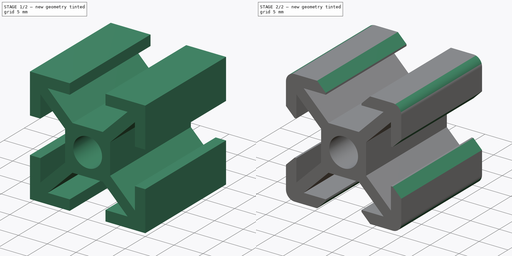
[diagram: build sequence overview — one tinted view per stage of 2, left to right]
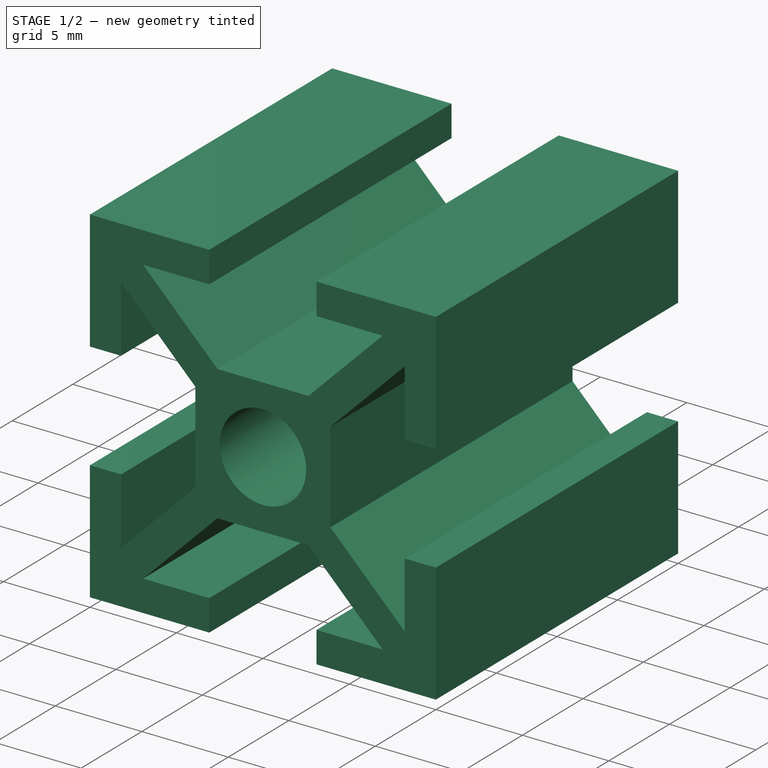
[diagram: stage 1 of 2 — iso view after this stage's code; geometry added in this stage tinted green]
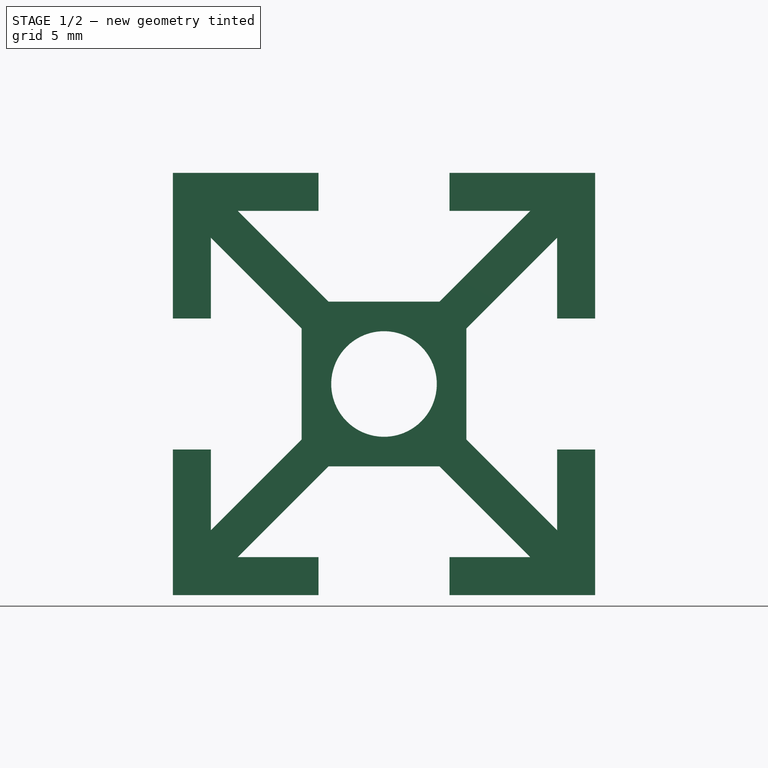
[diagram: stage 1 of 2 — front view after this stage's code; geometry added in this stage tinted green]
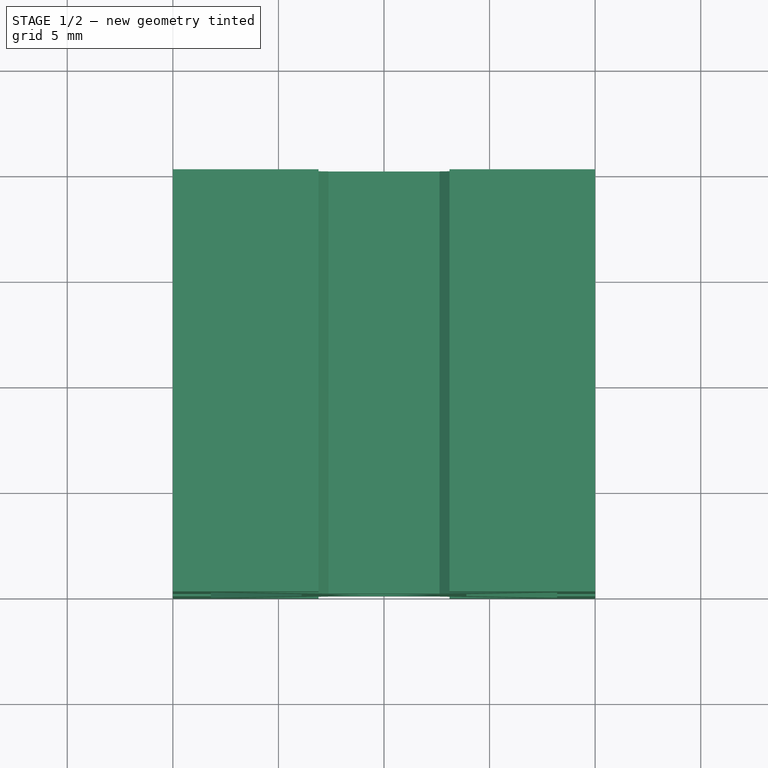
[diagram: stage 1 of 2 — top view after this stage's code; geometry added in this stage tinted green]
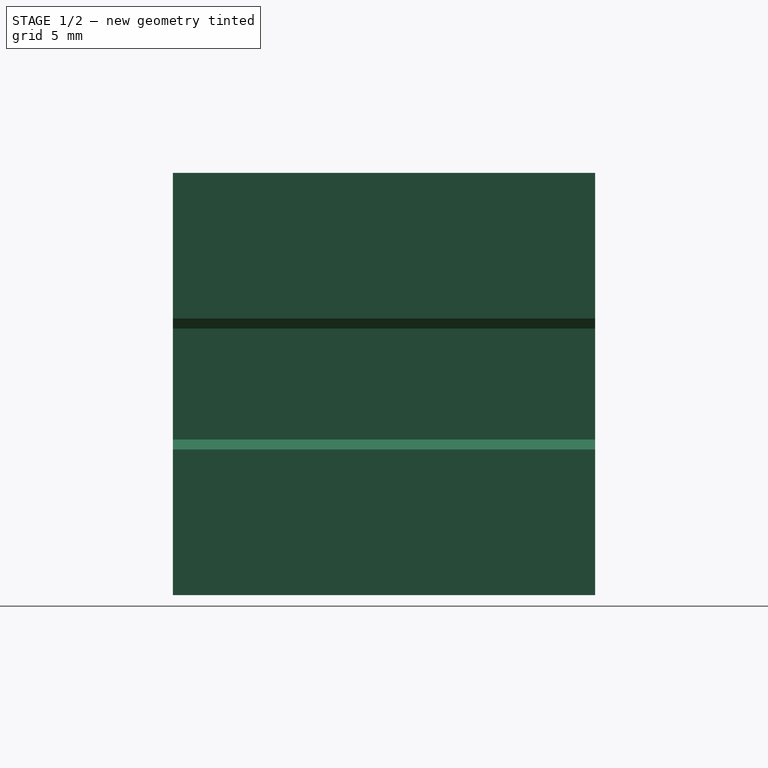
[diagram: stage 1 of 2 — right view after this stage's code; geometry added in this stage tinted green]
FCSTD DOCUMENT  (FreeCAD 1.0R39319 (Git))
Label: AlmProfile-2020
License: All rights reserved
LicenseURL: https://en.wikipedia.org/wiki/All_rights_reserved
objects: Sketcher::SketchObject×1, PartDesign::Pad×1, PartDesign::PolarPattern×1, PartDesign::Fillet×1, PartDesign::Chamfer×1, PartDesign::Body×1
note: 14 computed .brp shape members not serialized (recipe doc carries the construction recipe); baked Part::Feature solids carry a one-line shape summary decoded from their .brp

FEATURE [Sketcher::SketchObject] Sketch
  ArcFitTolerance = 1e-06
  AttachmentSupport = -> [XZ_Plane]
  FullyConstrained = true
  MakeInternals = false
  MapMode = 5
  Placement = pos=(0,0,0) rot=(1,0,0;1.5708rad)
  sketch-geometry (19):
    g0: LineSegment StartX=0 StartY=3.9 StartZ=0 EndX=2.62721 EndY=3.9 EndZ=0
    g1: LineSegment StartX=2.62721 StartY=3.9 StartZ=0 EndX=6.92721 EndY=8.2 EndZ=0
    g2: LineSegment StartX=3.9 StartY=2.62721 StartZ=0 EndX=3.9 EndY=0 EndZ=0
    g3: LineSegment [constr] StartX=3.9 StartY=2.62721 StartZ=0 EndX=8.2 EndY=2.62721 EndZ=0
    g4: LineSegment StartX=3.9 StartY=2.62721 StartZ=0 EndX=8.2 EndY=6.92721 EndZ=0
    g5: LineSegment StartX=6.92721 StartY=8.2 StartZ=0 EndX=3.1 EndY=8.2 EndZ=0
    g6: LineSegment StartX=3.1 StartY=8.2 StartZ=0 EndX=3.1 EndY=10 EndZ=0
    g7: LineSegment StartX=3.1 StartY=10 StartZ=0 EndX=10 EndY=10 EndZ=0
    g8: LineSegment StartX=10 StartY=10 StartZ=0 EndX=10 EndY=3.1 EndZ=0
    g9: LineSegment StartX=10 StartY=3.1 StartZ=0 EndX=8.2 EndY=3.1 EndZ=0
    g10: LineSegment StartX=8.2 StartY=3.1 StartZ=0 EndX=8.2 EndY=6.92721 EndZ=0
    g11: ArcOfCircle CenterX=0 CenterY=0 CenterZ=0 NormalX=0 NormalY=0 NormalZ=1 AngleXU=0 Radius=2.5 StartAngle=0 EndAngle=1.5708
    g12: LineSegment StartX=0 StartY=3.9 StartZ=0 EndX=0 EndY=2.5 EndZ=0
    g13: LineSegment StartX=2.5 StartY=0 StartZ=0 EndX=3.9 EndY=0 EndZ=0
    g14: LineSegment [constr] StartX=10 StartY=10 StartZ=0 EndX=0 EndY=10 EndZ=0
    g15: LineSegment [constr] StartX=0 StartY=10 StartZ=0 EndX=0 EndY=0 EndZ=0
    g16: LineSegment [constr] StartX=0 StartY=0 StartZ=0 EndX=10 EndY=0 EndZ=0
    g17: LineSegment [constr] StartX=10 StartY=0 StartZ=0 EndX=10 EndY=10 EndZ=0
    g18: LineSegment [constr] StartX=6.92721 StartY=8.2 StartZ=0 EndX=8.2 EndY=6.92721 EndZ=0
  constraints (54):
    c: PointOnObject(g0,g-2)
    c: Horizontal(g0)
    c: Coincident(g0,g1)
    c: PointOnObject(g2,g-1)
    c: Vertical(g2)
    c: Equal(g0,g2)
    c: Horizontal(g3)
    c: Coincident(g4,g2)
    c: Parallel(g1,g4)
    c: Equal(g1,g4)
    c: Coincident(g1,g5)
    c: Horizontal(g5)
    c: Coincident(g5,g6)
    c: Vertical(g6)
    c: Coincident(g6,g7)
    c: Horizontal(g7)
    c: Coincident(g7,g8)
    c: Vertical(g8)
    c: Coincident(g8,g9)
    c: Horizontal(g9)
    c: Coincident(g9,g10)
    c: Coincident(g10,g4)
    c: Vertical(g10)
    c: Angle(g3,g4) = 0.785398
    c: Equal(g8,g7)
    c: Coincident(g3,g2)
    c: PointOnObject(g3,g10)
    c: Coincident(g12,g0)
    c: Coincident(g12,g11)
    c: Vertical(g12)
    c: Coincident(g13,g11)
    c: Coincident(g13,g2)
    c: Horizontal(g13)
    c: Radius(g11) = 2.5
    c: Coincident(g11,g-1)
    c: Equal(g13,g12)
    c: Coincident(g14,g15)
    c: Coincident(g15,g16)
    c: Coincident(g16,g17)
    c: Coincident(g17,g14)
    c: Horizontal(g14)
    c: Horizontal(g16)
    c: Vertical(g15)
    c: Vertical(g17)
    c: Coincident(g14,g7)
    c: Coincident(g15,g11)
    c: Equal(g14,g17)
    c: DistanceX(g14,g14) = 10
    c: DistanceY(g0,g6) = 6.1
    c: DistanceY(g6,g6) = 1.8
    c: DistanceX(g-1,g6) = 3.1
    c: Coincident(g18,g1)
    c: Coincident(g18,g4)
    c: Equal(g18,g6)
FEATURE [PartDesign::Pad] Pad
  Direction = (0,-1,2e-16)
  Length = 20
  Length2 = 10
  Placement = pos=(0,0,0) rot=(1,0,0;1.5708rad)
  Profile = -> Sketch
  ReferenceAxis = -> Sketch [N_Axis]
  Refine = true
  Suppressed = false
  Type = 0
FEATURE [PartDesign::PolarPattern] PolarPattern
  Angle = 360
  Axis = -> Sketch [N_Axis]
  BaseFeature = -> Pad
  Mode = 0
  Occurrences = 4
  Offset = 120
  Originals = -> [Pad]
  Placement = pos=(0,0,0) rot=(1,0,0;1.5708rad)
  Refine = true
  Suppressed = false
  TransformMode = 0
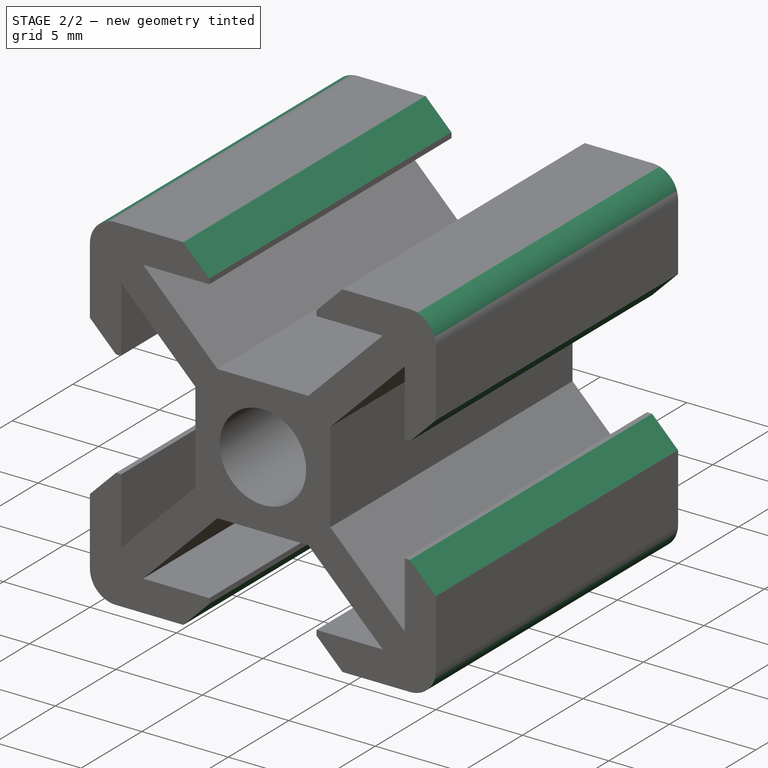
[diagram: stage 2 of 2 — iso view after this stage's code; geometry added in this stage tinted green]
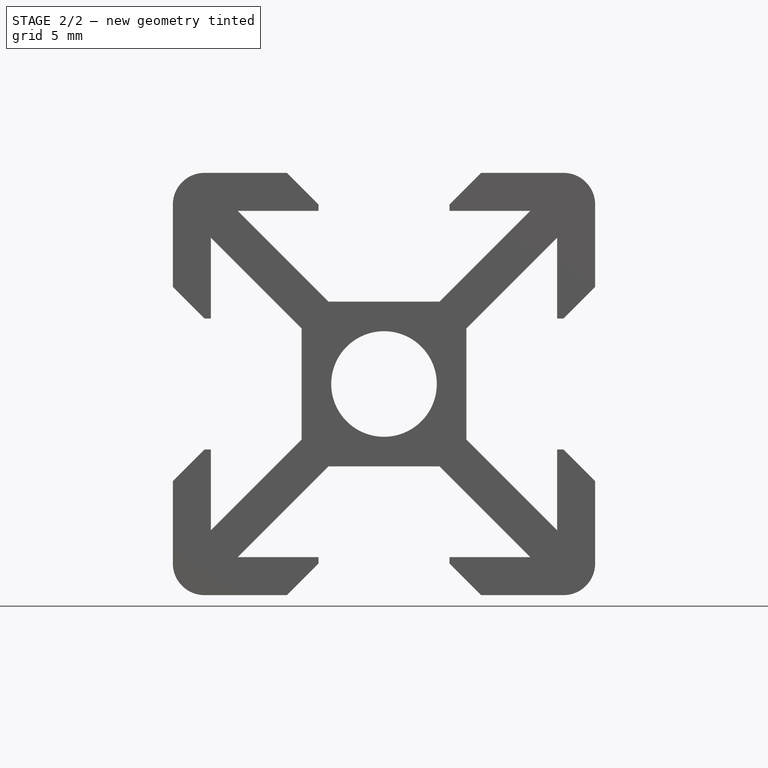
[diagram: stage 2 of 2 — front view after this stage's code; geometry added in this stage tinted green]
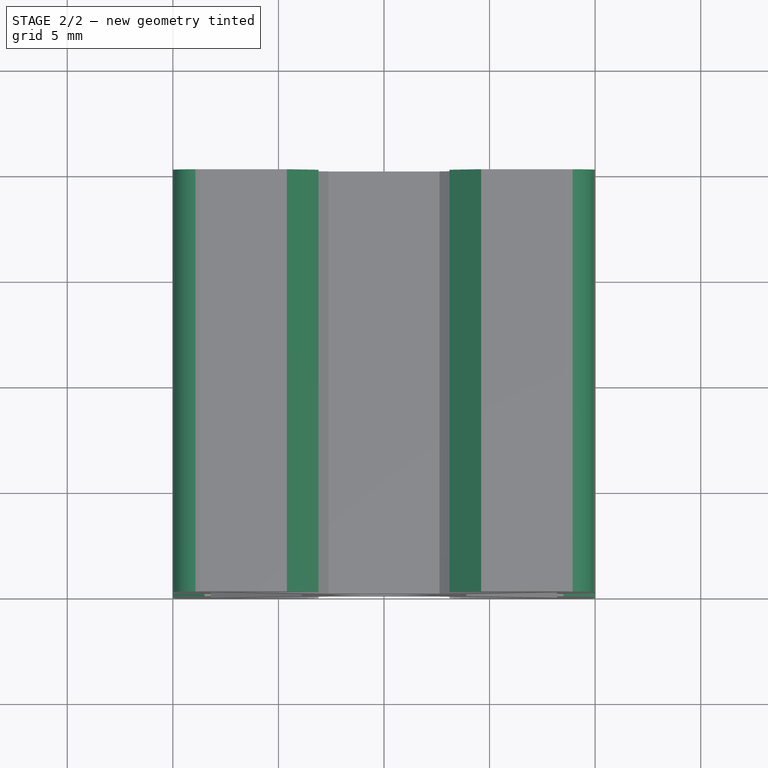
[diagram: stage 2 of 2 — top view after this stage's code; geometry added in this stage tinted green]
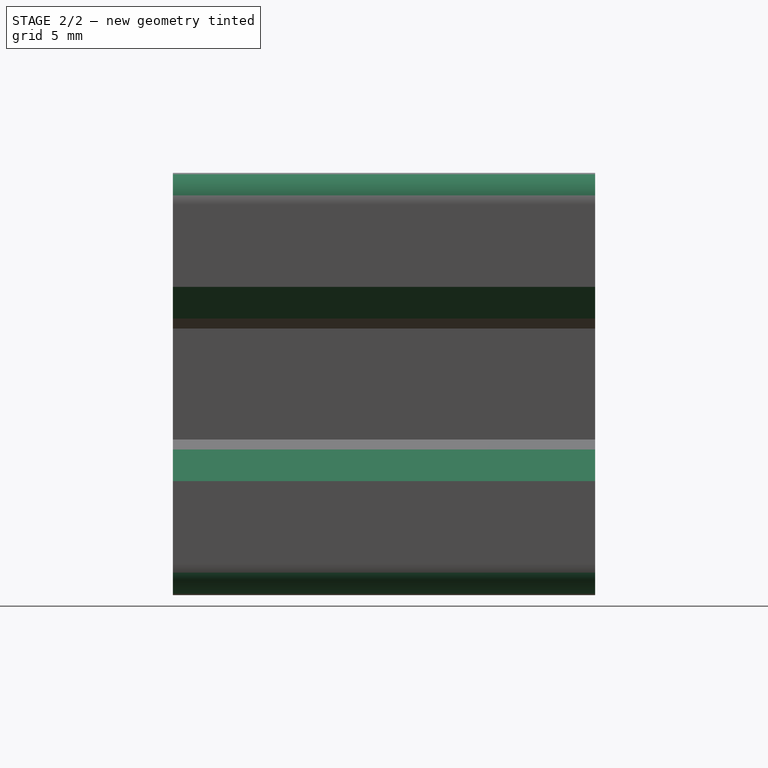
[diagram: stage 2 of 2 — right view after this stage's code; geometry added in this stage tinted green]
FEATURE [PartDesign::Fillet] Fillet
  Base = -> PolarPattern [Edge39,Edge11,Edge83,Edge100]
  BaseFeature = -> PolarPattern
  Placement = pos=(0,0,0) rot=(1,0,0;1.5708rad)
  Radius = 1.5
  Refine = true
  SupportTransform = false
  Suppressed = false
  UseAllEdges = false
FEATURE [PartDesign::Chamfer] Chamfer
  Angle = 45
  Base = -> Fillet [Edge3,Edge104,Edge110,Edge124,Edge127,Edge107,Edge113,Edge93]
  BaseFeature = -> Fillet
  ChamferType = 0
  FlipDirection = false
  Placement = pos=(0,0,0) rot=(1,0,0;1.5708rad)
  Refine = true
  Size = 1.5
  Size2 = 1
  SupportTransform = false
  Suppressed = false
  UseAllEdges = false
FEATURE [PartDesign::Body] Body
  AllowCompound = false
  Group = -> [Sketch,Pad,PolarPattern,Fillet,Chamfer]
  Origin = -> Origin
  Placement = pos=(0,0,0) rot=(1,0,0;4.71239rad)
  Tip = -> Chamfer
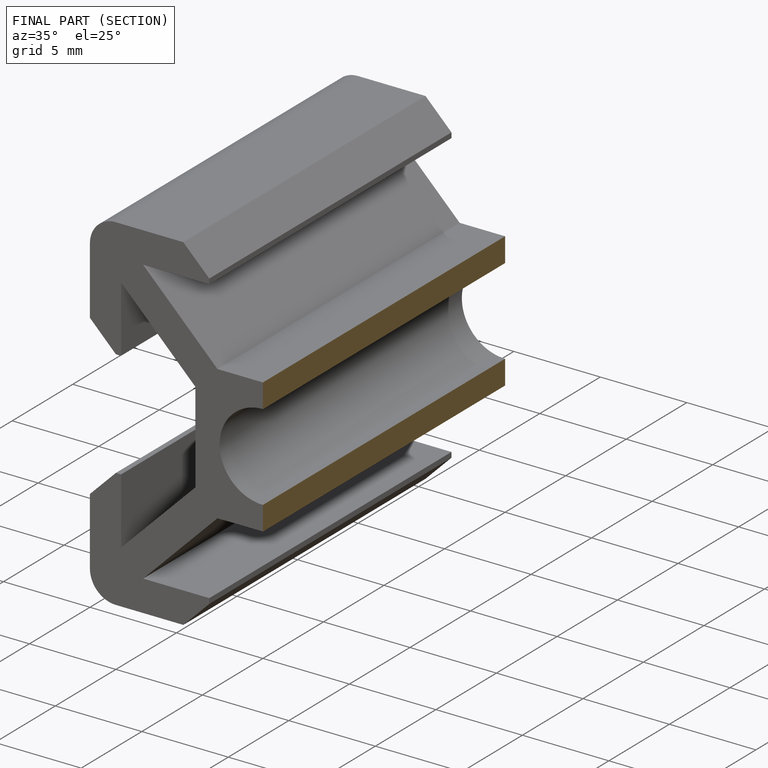
[diagram: finished part — half-section view (interior)]
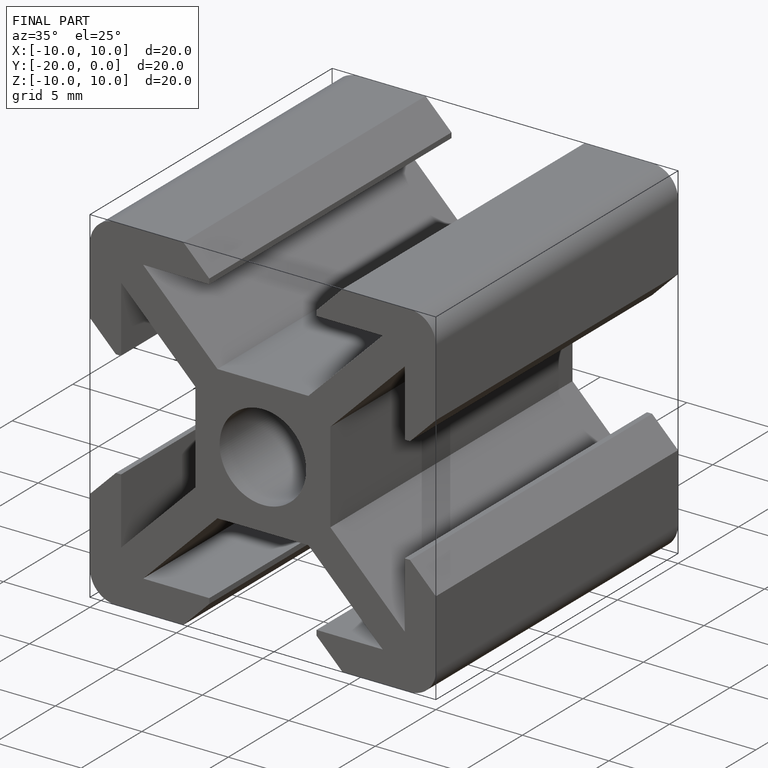
[diagram: finished part — iso view with bounding-box wireframe]
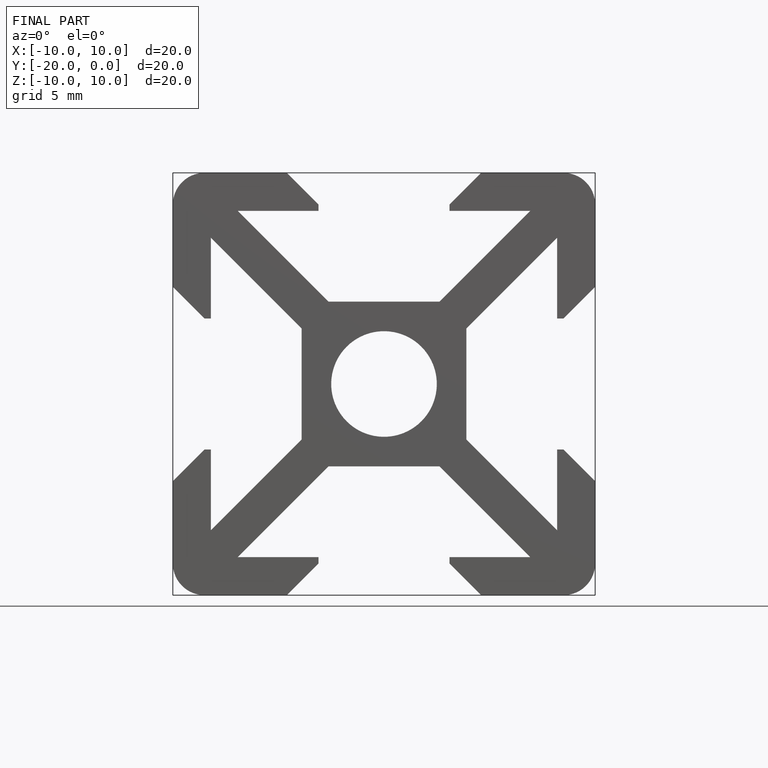
[diagram: finished part — front view with bounding-box wireframe]
